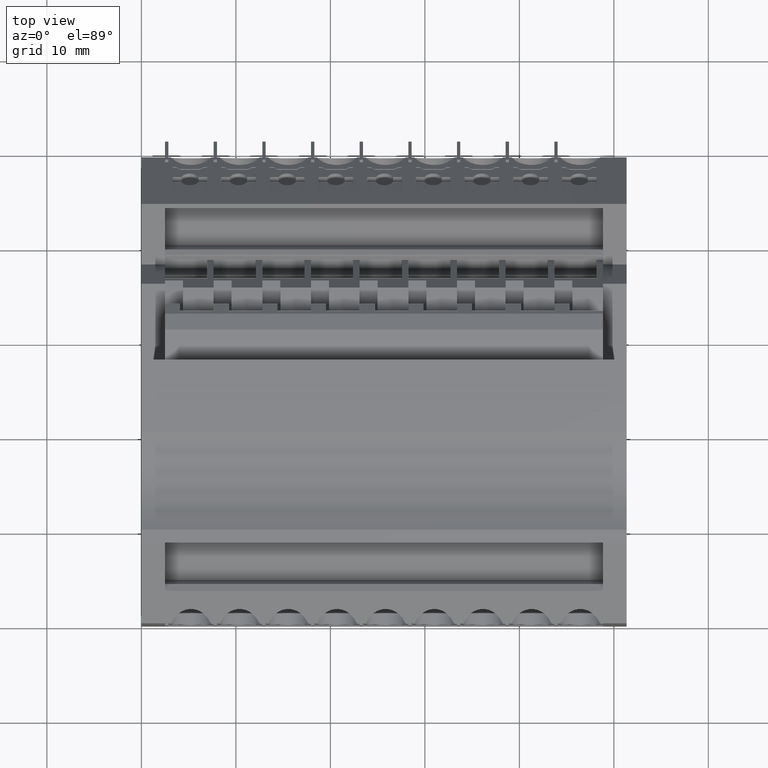
[diagram: clean part render]
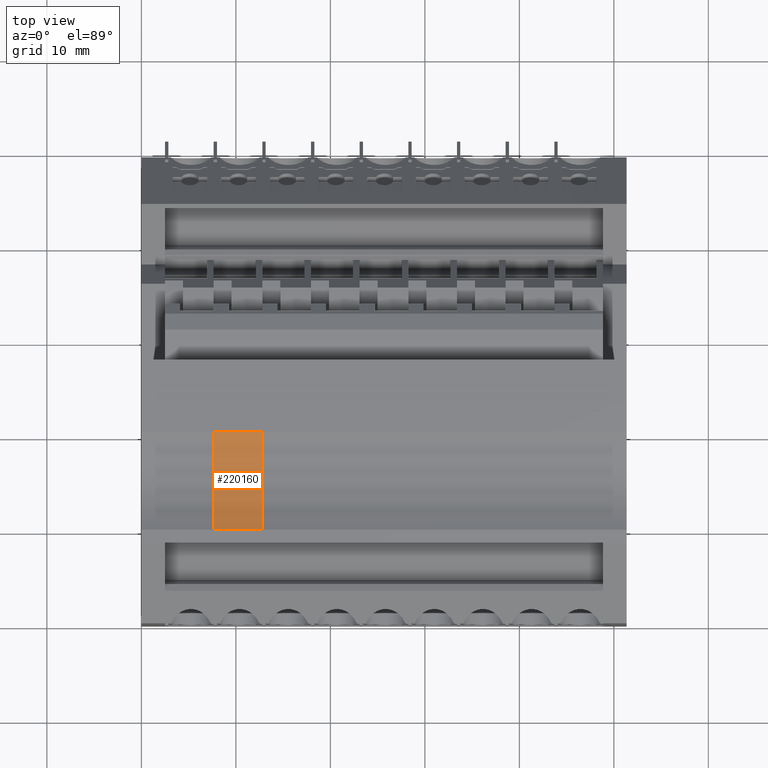
[diagram: same view with one face highlighted and labeled with its STEP entity id]
A machine part, top view. The second image highlights one B-rep face of the part: STEP entity #220160.
In plain terms, the highlighted cylindrical surface (partial cylindrical patch) has radius 10 mm, axis along (1, 0, -0).
Its self-contained STEP definition (entity closure, byte-faithful):
#49730=CARTESIAN_POINT('',(440.590572543565,697.534347620336,
82.9450001635446));
#49740=DIRECTION('',(3.65710502038586E-10,4.95141851786755E-10,1.));
#49750=VECTOR('',#49740,1.);
#49760=LINE('',#49730,#49750);
#50430=CARTESIAN_POINT('',(430.260883799414,697.534347634237,
82.9450001673223));
#50440=DIRECTION('',(3.65710502038586E-10,4.95141851786755E-10,1.));
#50450=VECTOR('',#50440,1.);
#50460=LINE('',#50430,#50450);
#50470=CARTESIAN_POINT('',(430.260883795876,697.534347629446,
73.2699999847475));
#50480=VERTEX_POINT('',#50470);
#50490=CARTESIAN_POINT('',(430.260883797759,697.534347634006,
78.4199999840403));
#50500=VERTEX_POINT('',#50490);
#50510=EDGE_CURVE('',#50480,#50500,#50460,.T.);
#83650=CARTESIAN_POINT('',(435.425728183013,706.097313387596,
82.9450001611936));
#83660=DIRECTION('',(3.65710502038586E-10,4.95141851786755E-10,1.));
#83670=DIRECTION('',(-0.386155668810907,-0.922433628747999,
5.97956747321646E-10));
#83680=AXIS2_PLACEMENT_3D('',#83650,#83660,#83670);
#83690=CYLINDRICAL_SURFACE('',#83680,10.);
#83810=CARTESIAN_POINT('',(440.590572540027,697.534347615545,
73.2699999809697));
#83820=VERTEX_POINT('',#83810);
#83850=CARTESIAN_POINT('',(435.425728179475,706.097313382805,
73.2699999786187));
#83860=DIRECTION('',(3.65710502038586E-10,4.95141851786755E-10,1.));
#83870=DIRECTION('',(-0.386155668810907,-0.922433628747999,
5.97956728772318E-10));
#83880=AXIS2_PLACEMENT_3D('',#83850,#83860,#83870);
#83890=CIRCLE('',#83880,10.);
#83900=EDGE_CURVE('',#50480,#83820,#83890,.T.);
#220010=ORIENTED_EDGE('',*,*,#50510,.T.);
#220020=ORIENTED_EDGE('',*,*,#83900,.F.);
#220030=CARTESIAN_POINT('',(440.59057254191,697.534347621499,
78.4199999832219));
#220040=VERTEX_POINT('',#220030);
#220050=EDGE_CURVE('',#83820,#220040,#49760,.T.);
#220060=ORIENTED_EDGE('',*,*,#220050,.F.);
#220070=CARTESIAN_POINT('',(435.425728181358,706.097313385355,
78.4199999786187));
#220080=DIRECTION('',(3.65710502038586E-10,4.95141851786755E-10,1.));
#220090=DIRECTION('',(-0.386155668810907,-0.922433628747999,
5.97956728772318E-10));
#220100=AXIS2_PLACEMENT_3D('',#220070,#220080,#220090);
#220110=CIRCLE('',#220100,10.);
#220120=EDGE_CURVE('',#50500,#220040,#220110,.T.);
#220130=ORIENTED_EDGE('',*,*,#220120,.T.);
#220140=EDGE_LOOP('',(#220130,#220060,#220020,#220010));
#220150=FACE_OUTER_BOUND('',#220140,.T.);
#220160=ADVANCED_FACE('',(#220150),#83690,.F.);